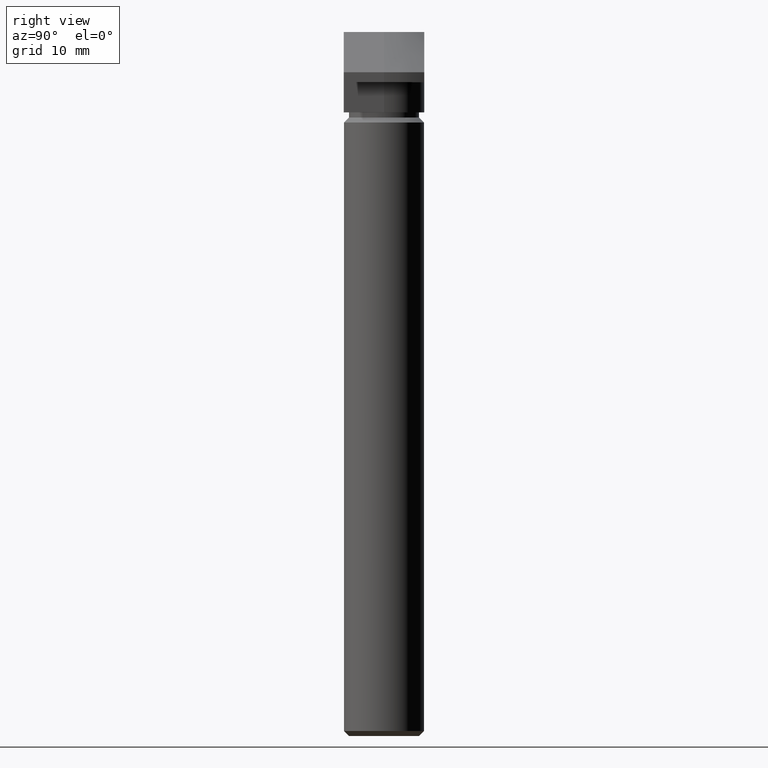
[diagram: clean part render]
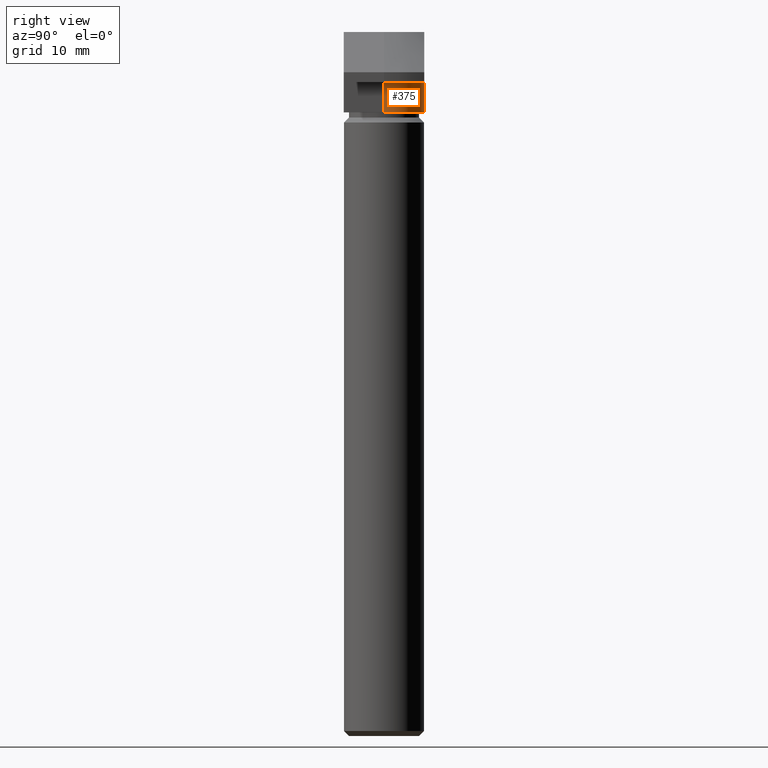
[diagram: same view with one face highlighted and labeled with its STEP entity id]
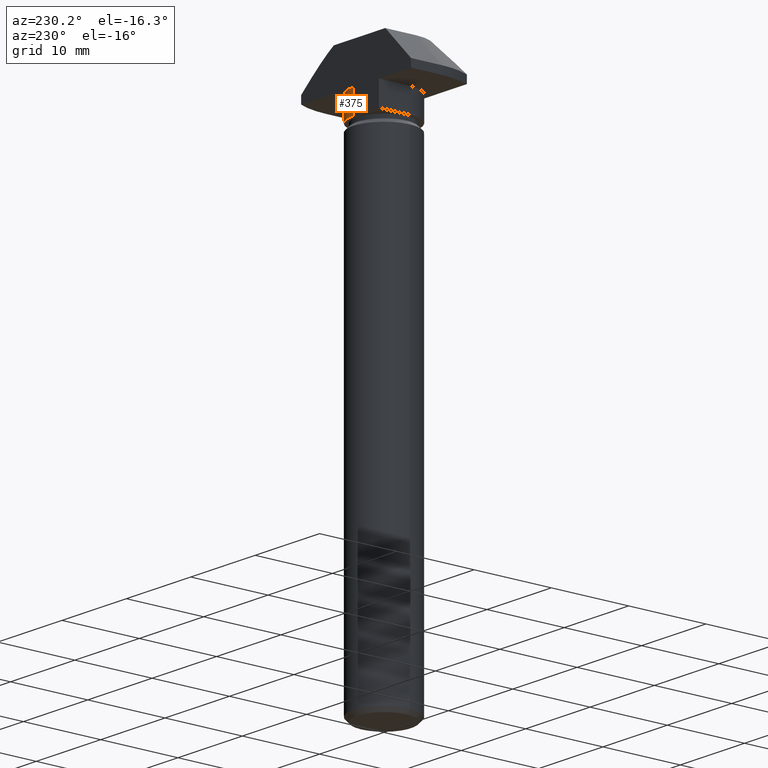
[diagram: same view with one face highlighted and labeled with its STEP entity id]
A machine part, right view. The second image highlights one B-rep face of the part: STEP entity #375.
A second angle (auxiliary view) of the same face is appended — the face is thin or edge-on in the first view.
In plain terms, the highlighted cylindrical surface (partial cylindrical patch) has radius 4 mm, axis along (0, 0, -1).
Its self-contained STEP definition (entity closure, byte-faithful):
#25=LINE('',#581,#59);
#26=LINE('',#587,#60);
#59=VECTOR('',#470,3.);
#60=VECTOR('',#477,3.);
#101=CYLINDRICAL_SURFACE('',#407,3.99999999999999);
#117=FACE_OUTER_BOUND('',#144,.T.);
#144=EDGE_LOOP('',(#282,#283,#284,#285));
#167=CIRCLE('',#408,3.99999999999999);
#168=CIRCLE('',#409,3.99999999999999);
#187=VERTEX_POINT('',#575);
#189=VERTEX_POINT('',#579);
#190=VERTEX_POINT('',#583);
#191=VERTEX_POINT('',#585);
#225=EDGE_CURVE('',#187,#189,#25,.T.);
#226=EDGE_CURVE('',#187,#190,#167,.T.);
#227=EDGE_CURVE('',#191,#189,#168,.T.);
#228=EDGE_CURVE('',#190,#191,#26,.T.);
#282=ORIENTED_EDGE('',*,*,#226,.F.);
#283=ORIENTED_EDGE('',*,*,#225,.T.);
#284=ORIENTED_EDGE('',*,*,#227,.F.);
#285=ORIENTED_EDGE('',*,*,#228,.F.);
#375=ADVANCED_FACE('',(#117),#101,.T.);
#407=AXIS2_PLACEMENT_3D('',#582,#471,#472);
#408=AXIS2_PLACEMENT_3D('',#584,#473,#474);
#409=AXIS2_PLACEMENT_3D('',#586,#475,#476);
#470=DIRECTION('',(0.,0.,-1.));
#471=DIRECTION('center_axis',(0.,0.,-1.));
#472=DIRECTION('ref_axis',(0.,-1.,0.));
#473=DIRECTION('center_axis',(0.,0.,1.));
#474=DIRECTION('ref_axis',(0.,-1.,0.));
#475=DIRECTION('center_axis',(0.,0.,-1.));
#476=DIRECTION('ref_axis',(0.,-1.,0.));
#477=DIRECTION('',(0.,0.,-1.));
#575=CARTESIAN_POINT('',(3.99999999999999,-1.49880108324396E-14,-5.));
#579=CARTESIAN_POINT('',(3.99999999999999,-1.49880108324396E-14,-8.));
#581=CARTESIAN_POINT('',(3.99999999999999,-1.49880108324396E-14,-5.));
#582=CARTESIAN_POINT('Origin',(0.,0.,-5.));
#583=CARTESIAN_POINT('',(0.,3.99999999999998,-5.));
#584=CARTESIAN_POINT('Origin',(0.,0.,-5.));
#585=CARTESIAN_POINT('',(0.,3.99999999999998,-8.));
#586=CARTESIAN_POINT('Origin',(0.,0.,-8.));
#587=CARTESIAN_POINT('',(0.,3.99999999999998,-5.));